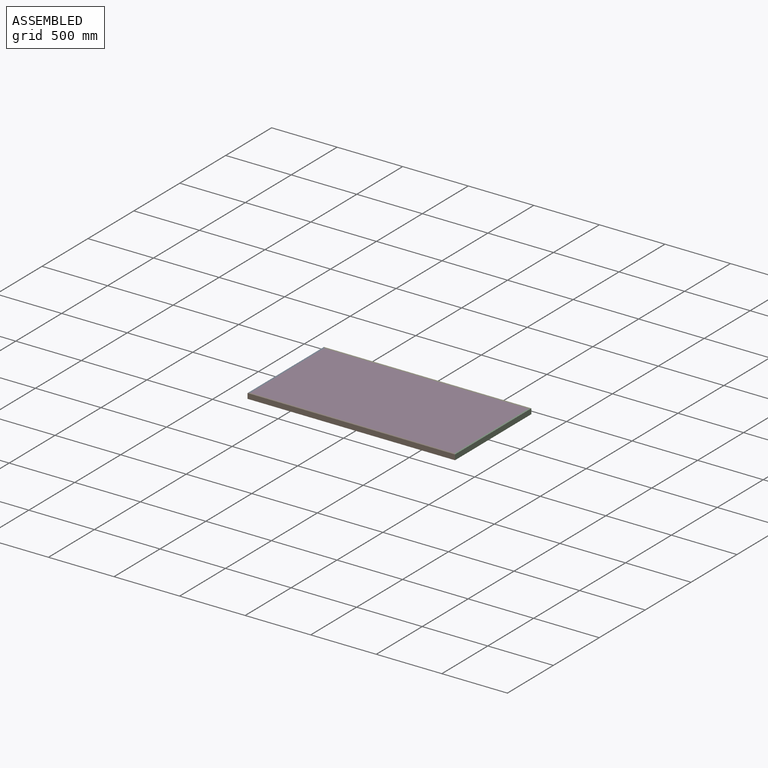
[diagram: assembled view]
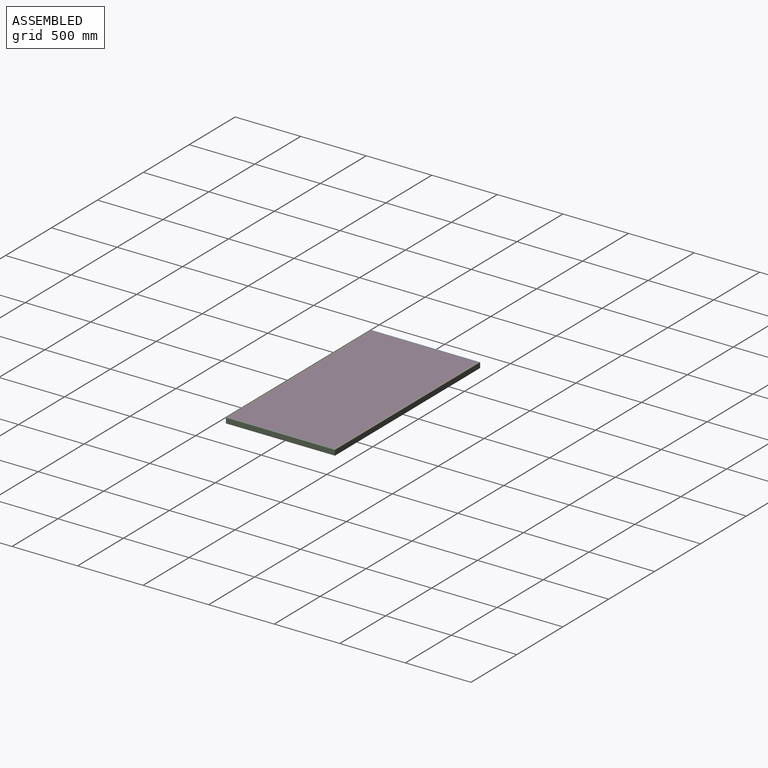
[diagram: assembled view, second angle]
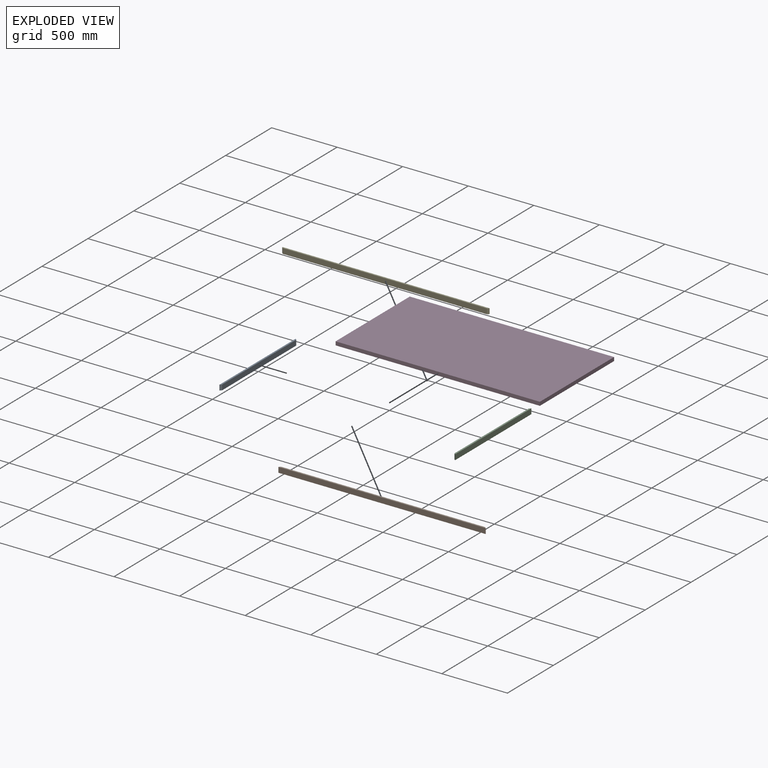
[diagram: exploded view]
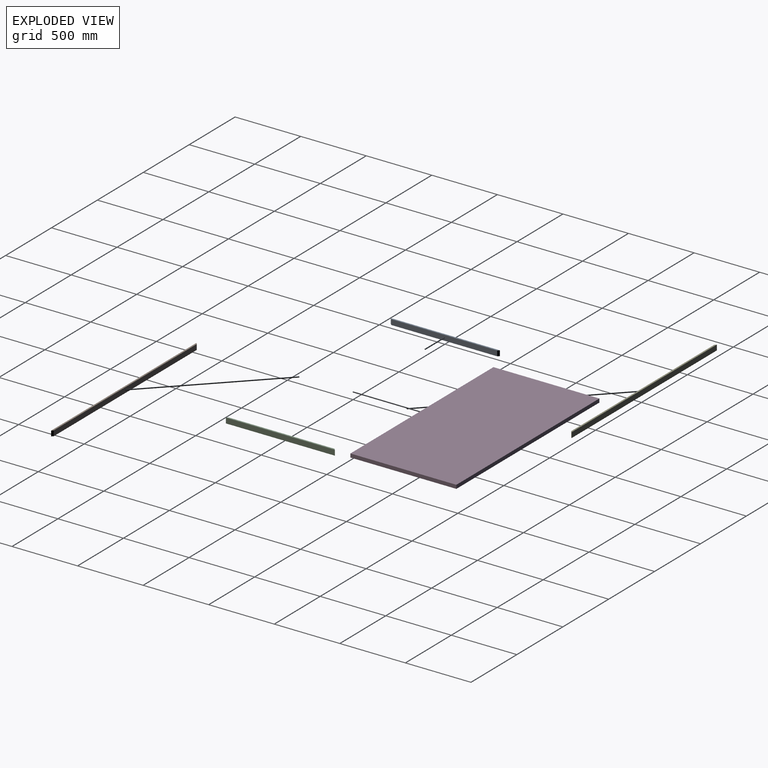
[diagram: exploded view, second angle]
ASSEMBLY  parts=5 mates=4
PART A: 6 faces, bbox 12x832x40 mm
  f0: plane 832x40mm, normal (-1,0,0), area 33280mm2, adj f1,f3,f4,f5
  f1: plane 40x12mm, normal (0.71,-0.71,0), area 678.8mm2, adj f0,f2,f4,f5
  f2: plane 808x40mm, normal (1,0,0), area 32320mm2, adj f1,f3,f4,f5
  f3: plane 40x12mm, normal (0.71,0.71,0), area 678.8mm2, adj f0,f2,f4,f5
  f4: plane 832x12mm, normal (0,0,1), area 9840mm2, adj f0,f1,f2,f3
  f5: plane 832x12mm, normal (0,0,-1), area 9840mm2, adj f0,f1,f2,f3
PART B: 6 faces, bbox 12x1582x40 mm
  f0: plane 40x12mm, normal (-0.71,-0.71,0), area 678.8mm2, adj f1,f3,f4,f5
  f1: plane 1582x40mm, normal (1,0,0), area 63280mm2, adj f0,f2,f4,f5
  f2: plane 40x12mm, normal (-0.71,0.71,0), area 678.8mm2, adj f1,f3,f4,f5
  f3: plane 1558x40mm, normal (-1,0,0), area 62320mm2, adj f0,f2,f4,f5
  f4: plane 1582x12mm, normal (0,0,1), area 18840mm2, adj f0,f1,f2,f3
  f5: plane 1582x12mm, normal (0,0,-1), area 18840mm2, adj f0,f1,f2,f3
PART C: same geometry as A
PART D: 6 faces, bbox 808x1558x28 mm
  f0: plane 1558x28mm, normal (-1,0,0), area 43624mm2, adj f1,f3,f4,f5
  f1: plane 808x28mm, normal (0,-1,0), area 22624mm2, adj f0,f2,f4,f5
  f2: plane 1558x28mm, normal (1,0,0), area 43624mm2, adj f1,f3,f4,f5
  f3: plane 808x28mm, normal (0,1,0), area 22624mm2, adj f0,f2,f4,f5
  f4: plane 1558x808mm, normal (0,0,1), area 1258864mm2, adj f0,f1,f2,f3
  f5: plane 1558x808mm, normal (0,0,-1), area 1258864mm2, adj f0,f1,f2,f3
PART E: same geometry as B
PLACE A t=(-650.56,9,-12)mm
PLACE B rot(axis=(0,0,-1),90deg) t=(0,-300.42,-12)mm
PLACE C rot(axis=(0,0,-1),180deg) t=(650.56,-9,-12)mm
PLACE D rot(axis=(0,0,1),90deg) t=(0,-600,0)mm
PLACE E rot(axis=(0,0,1),90deg) t=(0,300.42,-12)mm
MATE fastened D.f4 <-> E.f4  axis (0,0,1) through (0,404,28)mm
MATE fastened C.f1 <-> E.f0  axis (-0.71,0.71,0) through (785,410,8)mm
MATE fastened E.f2 <-> A.f3  axis (-0.71,-0.71,0) through (-785,410,8)mm
MATE fastened B.f0 <-> A.f1  axis (-0.71,0.71,0) through (-785,-410,8)mm
